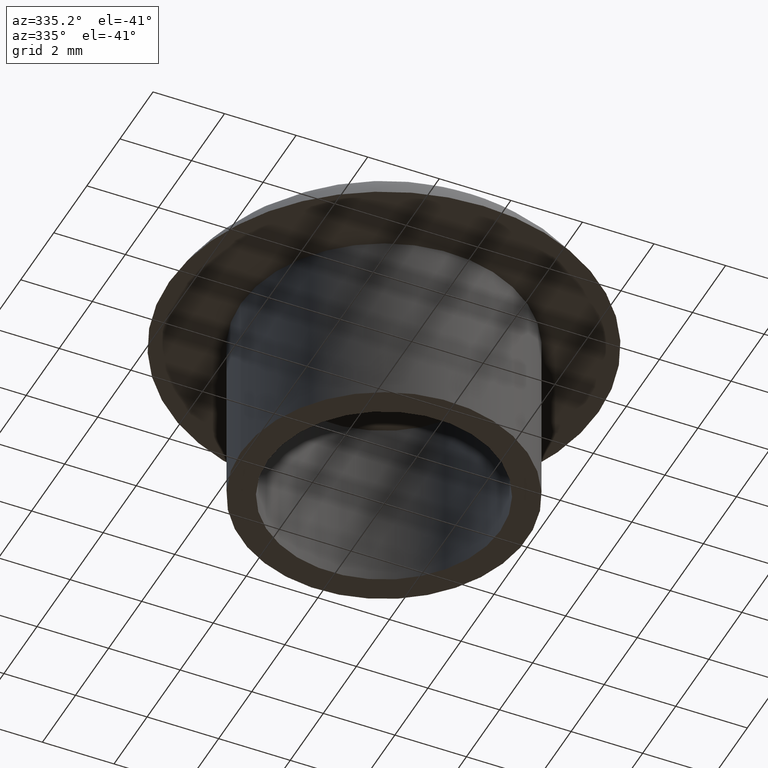
[diagram: clean part render]
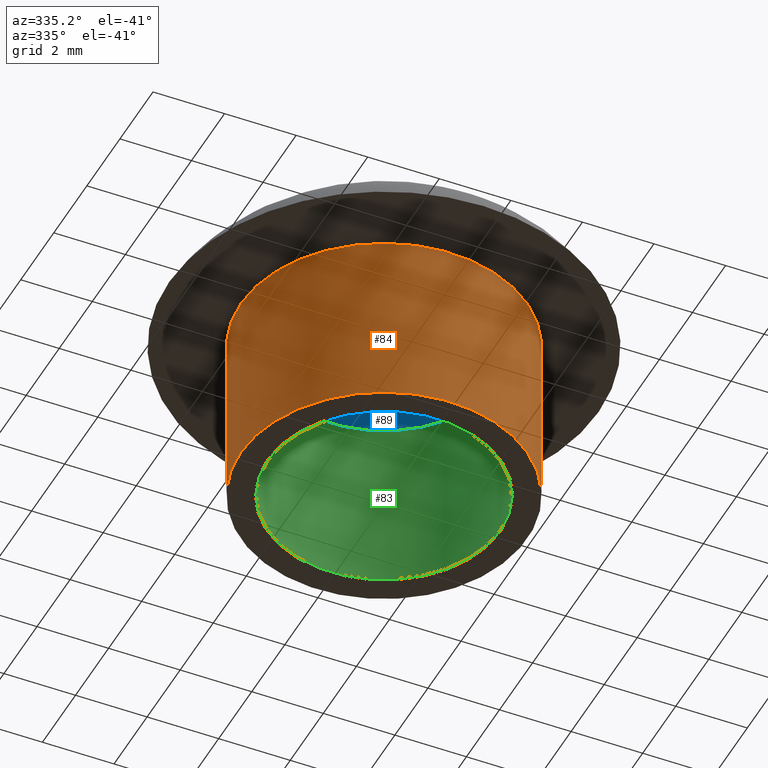
[diagram: same view with three faces highlighted in distinct colors, each labeled with its STEP entity id]
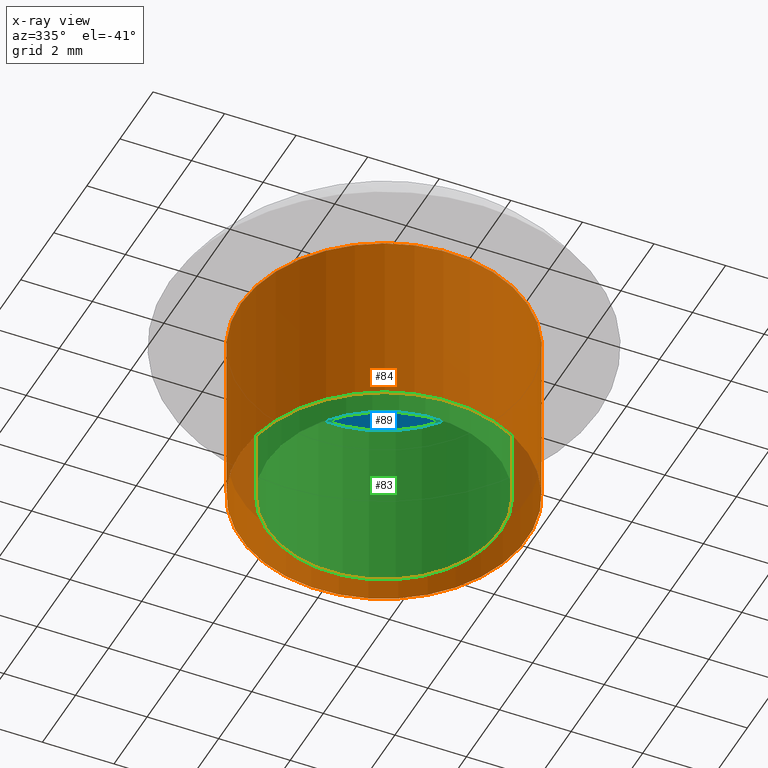
[diagram: x-ray of the same camera — body ghosted, the three highlighted faces saturated]
A machine part, auxiliary view with three faces highlighted in distinct colors.
The next image is the same camera in x-ray (body ghosted, the three faces saturated) — at least one of them is partly hidden behind the body in this view.
Their STEP definitions:

[orange] entity #84 — the highlighted cylindrical surface (bore or boss wall) has radius 4 mm, axis along (0, 0, -1).
#22=FACE_BOUND('',#35,.T.);
#26=FACE_OUTER_BOUND('',#34,.T.);
#34=EDGE_LOOP('',(#67));
#35=EDGE_LOOP('',(#68));
#45=CIRCLE('',#96,4.);
#46=CIRCLE('',#97,4.);
#52=VERTEX_POINT('',#140);
#53=VERTEX_POINT('',#142);
#59=EDGE_CURVE('',#52,#52,#45,.T.);
#60=EDGE_CURVE('',#53,#53,#46,.T.);
#67=ORIENTED_EDGE('',*,*,#59,.F.);
#68=ORIENTED_EDGE('',*,*,#60,.F.);
#82=CYLINDRICAL_SURFACE('',#95,4.);
#84=ADVANCED_FACE('',(#26,#22),#82,.T.);
#95=AXIS2_PLACEMENT_3D('',#139,#113,#114);
#96=AXIS2_PLACEMENT_3D('',#141,#115,#116);
#97=AXIS2_PLACEMENT_3D('',#143,#117,#118);
#113=DIRECTION('center_axis',(0.,0.,-1.));
#114=DIRECTION('ref_axis',(1.,0.,0.));
#115=DIRECTION('center_axis',(0.,0.,-1.));
#116=DIRECTION('ref_axis',(1.,0.,0.));
#117=DIRECTION('center_axis',(0.,0.,1.));
#118=DIRECTION('ref_axis',(1.,0.,0.));
#139=CARTESIAN_POINT('Origin',(0.,0.,0.));
#140=CARTESIAN_POINT('',(-4.,4.89858719658941E-16,-5.));
#141=CARTESIAN_POINT('Origin',(0.,0.,-5.));
#142=CARTESIAN_POINT('',(-4.,4.89858719658941E-16,0.));
#143=CARTESIAN_POINT('Origin',(0.,0.,0.));

[blue] entity #89 — the highlighted planar face has unit normal (0, 0, 1).
#20=PLANE('',#104);
#31=FACE_OUTER_BOUND('',#42,.T.);
#42=EDGE_LOOP('',(#80));
#44=CIRCLE('',#94,3.25);
#51=VERTEX_POINT('',#137);
#58=EDGE_CURVE('',#51,#51,#44,.T.);
#80=ORIENTED_EDGE('',*,*,#58,.T.);
#89=ADVANCED_FACE('',(#31),#20,.F.);
#94=AXIS2_PLACEMENT_3D('',#138,#111,#112);
#104=AXIS2_PLACEMENT_3D('',#183,#131,#132);
#111=DIRECTION('center_axis',(0.,0.,-1.));
#112=DIRECTION('ref_axis',(1.,0.,0.));
#131=DIRECTION('center_axis',(0.,0.,1.));
#132=DIRECTION('ref_axis',(1.,0.,0.));
#137=CARTESIAN_POINT('',(-3.25,3.9801020972289E-16,0.));
#138=CARTESIAN_POINT('Origin',(0.,0.,0.));
#183=CARTESIAN_POINT('Origin',(-3.69627624575467E-16,-1.54197642309049E-16,
0.));

[green] entity #83 — the highlighted cylindrical surface (bore or boss wall) has radius 3.25 mm, axis along (0, 0, -1).
#21=FACE_BOUND('',#33,.T.);
#25=FACE_OUTER_BOUND('',#32,.T.);
#32=EDGE_LOOP('',(#65));
#33=EDGE_LOOP('',(#66));
#43=CIRCLE('',#93,3.25);
#44=CIRCLE('',#94,3.25);
#50=VERTEX_POINT('',#135);
#51=VERTEX_POINT('',#137);
#57=EDGE_CURVE('',#50,#50,#43,.T.);
#58=EDGE_CURVE('',#51,#51,#44,.T.);
#65=ORIENTED_EDGE('',*,*,#57,.F.);
#66=ORIENTED_EDGE('',*,*,#58,.F.);
#81=CYLINDRICAL_SURFACE('',#92,3.25);
#83=ADVANCED_FACE('',(#25,#21),#81,.F.);
#92=AXIS2_PLACEMENT_3D('',#134,#107,#108);
#93=AXIS2_PLACEMENT_3D('',#136,#109,#110);
#94=AXIS2_PLACEMENT_3D('',#138,#111,#112);
#107=DIRECTION('center_axis',(0.,0.,-1.));
#108=DIRECTION('ref_axis',(1.,0.,0.));
#109=DIRECTION('center_axis',(0.,0.,1.));
#110=DIRECTION('ref_axis',(1.,0.,0.));
#111=DIRECTION('center_axis',(0.,0.,-1.));
#112=DIRECTION('ref_axis',(1.,0.,0.));
#134=CARTESIAN_POINT('Origin',(0.,0.,0.));
#135=CARTESIAN_POINT('',(-3.25,3.9801020972289E-16,-5.));
#136=CARTESIAN_POINT('Origin',(0.,0.,-5.));
#137=CARTESIAN_POINT('',(-3.25,3.9801020972289E-16,0.));
#138=CARTESIAN_POINT('Origin',(0.,0.,0.));